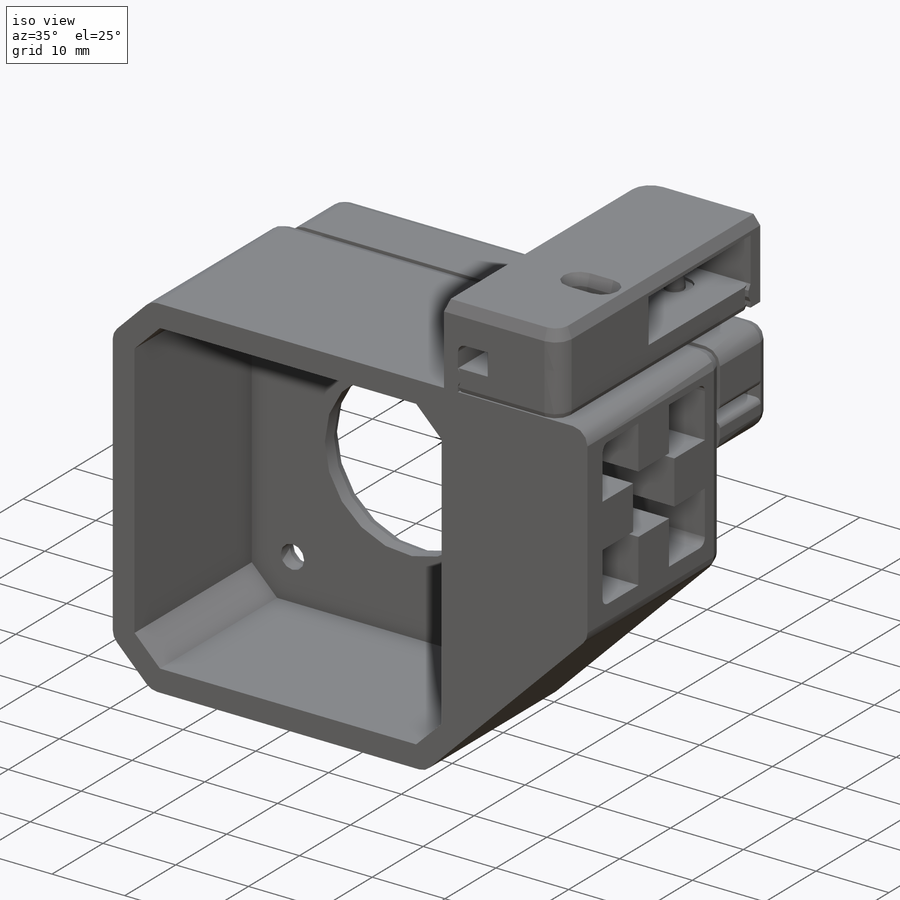
[diagram: iso view]
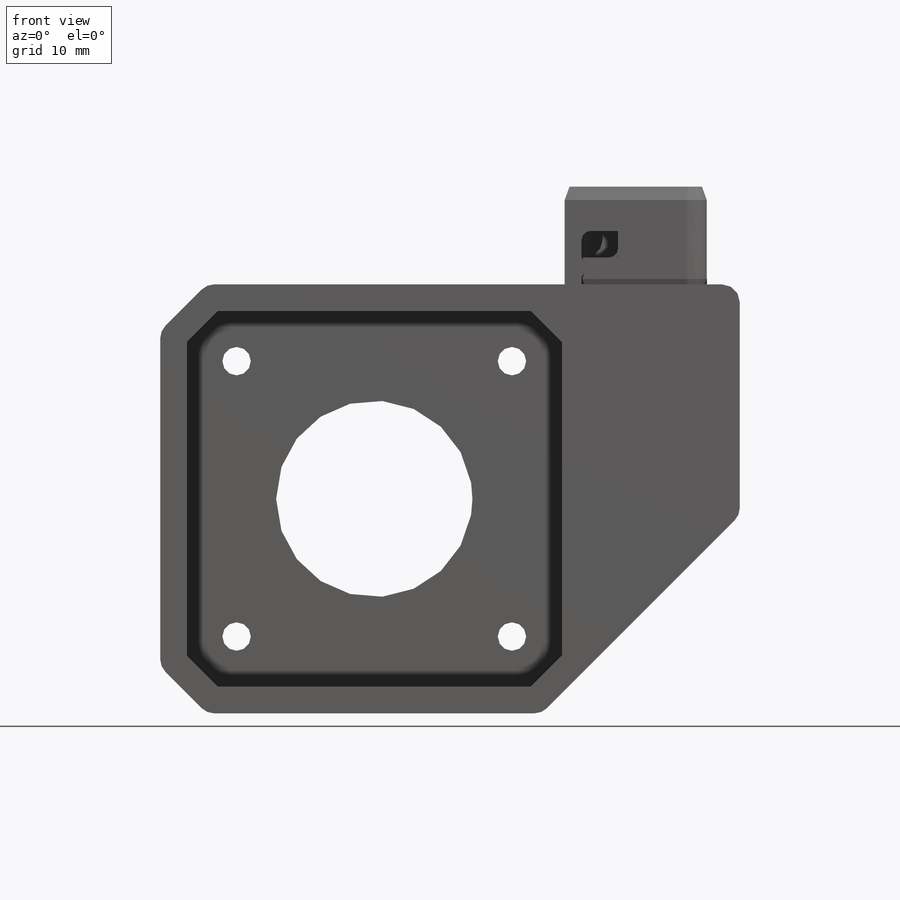
[diagram: front view]
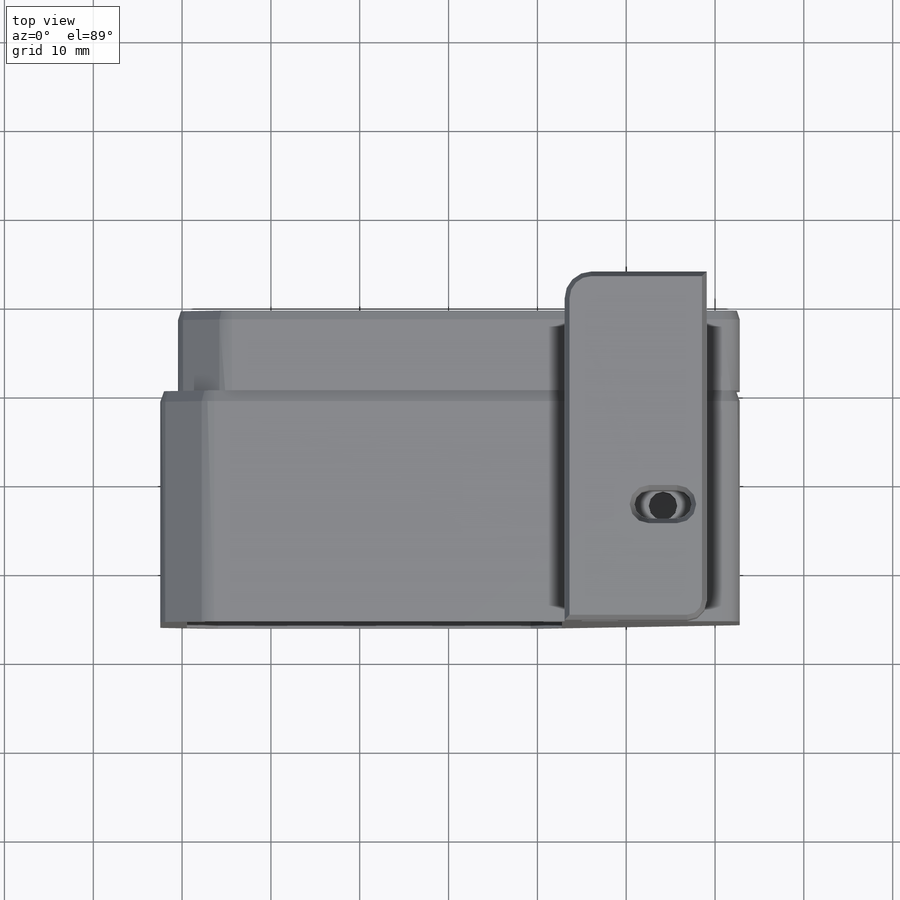
[diagram: top view]
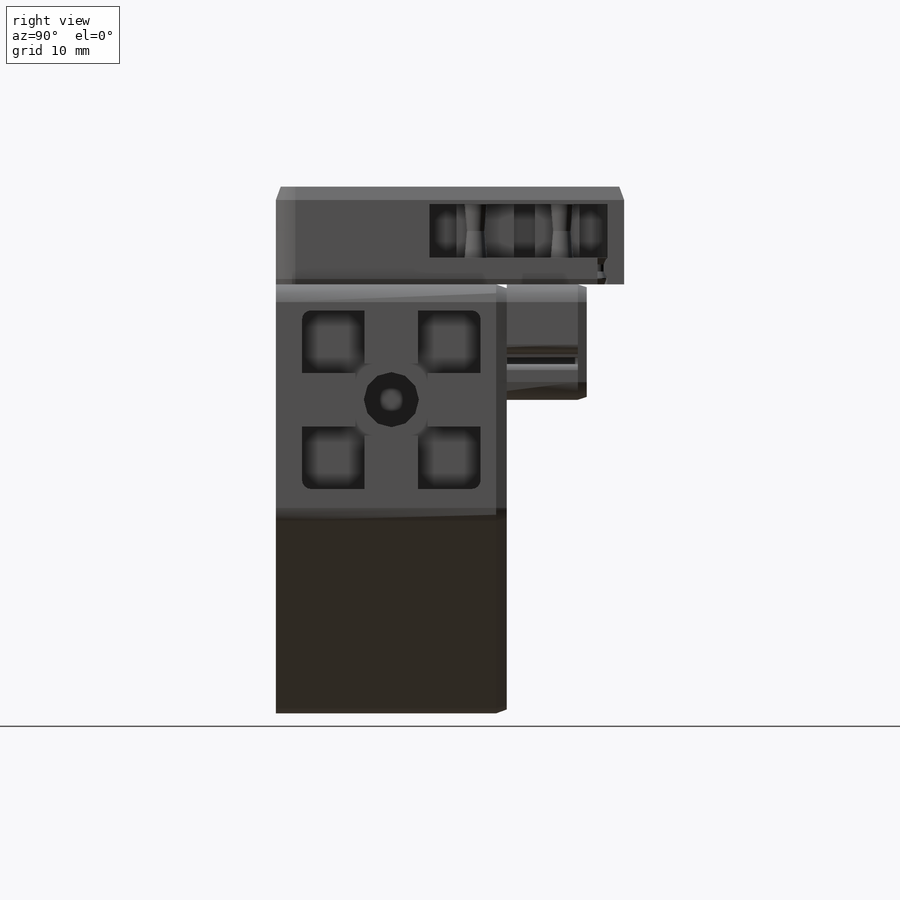
[diagram: right view]
SOLIDWORKS PART (.sldprt)
format: sldprt  version: not decoded by parser v0  size: 1,106,944 bytes
history: native  units: mm
features: sketch x26, extrude x15, cut_extrude x8, fillet x7, chamfer x5, plane x3, sweep x2, material x1 (+9 scaffold rows collapsed)
feature tree (76):
  scaffold x9  (default folders/planes/origin — collapsed)
  material  "Материал <не указан>"
  plane  "Спереди"
  plane  "Сверху"
  plane  "Справа"
  sketch  "Sketch1"  dims[D9=3.2mm D10=22.1mm D1=42.2mm D2=3.0mm D3=3.0mm D4=3.0mm D5=3.0mm D6=3.0mm D7=3.0mm D8=135.0deg]
  extrude  "Extrude1"  Depth=26mm
  extrude  "Extrude2"  [1 undecoded]
  sketch  "Sketch"  dims[D1=3.0mm]
  sketch  "Sketch2"  dims[D2=1.0mm D3=6.2mm D1=20.1mm D4=6.0mm D5=6.0mm D6=4.0]
  cut_extrude  "Extrude3"  Depth=12mm
  cut_extrude  "Extrude4"  [1 undecoded]
  sketch  "Sketch"
  sketch  "Sketch3"  dims[D1=10.2mm]
  cut_extrude  "Extrude5"  Depth=6.2mm
  fillet  "Fillet1"  Radius=2mm
  chamfer  "Chamfer1"  Distance=1mm Angle=45deg
  sketch  "Sketch4"  dims[c1.D2=~1.733559mm c1.D1=2.0mm c1.D6=2.0mm c2.D2=3.2mm c2.D3=3.2mm c2.D5=13.0mm c2.D1=0.05mm c2.D4=0.0mm]
  extrude  "Extrude6"  Depth=8mm
  extrude  "Extrude7"  [1 undecoded]
  sketch  "Sketch"  dims[D1=1.0mm]
  chamfer  "Chamfer2"  Distance=1mm Angle=18deg
  chamfer  "Chamfer3"  Distance=1.2mm Angle=20deg
  sketch  "Sketch5"  dims[c1.D5=3.2mm c1.D6=3.2mm c1.D9=1.0mm c1.D10=2.2mm c1.D1=1.2mm c1.D2=2.0mm c1.D3=5.0mm c1.D4=6.5mm c1.D7=9.0mm c1.D8=5.0mm c2.D1=4.0mm c2.D9=16.0mm c2.D5=5.0mm c2.D6=1.8mm c2.D8=3.4mm c2.D12=9.0mm c2.D13=6.9mm c2.D14=5.0mm c2.D15=9.7mm c2.D16=~6.926712mm c2.D10=1.2mm c2.D11=0.1mm]
  extrude  "Extrude8"  Depth=3mm
  extrude  "Extrude9"  [1 undecoded]
  sketch  "Sketch"  dims[D1=3.0mm D2=3.0mm D3=5.0deg D19=3.0mm]
  sketch  "Sketch6"  dims[D1=1.0mm]
  cut_extrude  "Extrude10"  Depth=0.4mm
  extrude  "Extrude11"  [1 undecoded]
  sketch  "Sketch"  dims[D1=3.0mm D2=3.0mm D19=3.0mm]
  fillet  "Fillet2"  Radius=1mm
  fillet  "Fillet3"  Radius=2mm
  extrude  "Extrude13"  [1 undecoded]
  sketch  "Sketch"  dims[D1=9.0mm]
  extrude  "Extrude14"  [1 undecoded]
  sketch  "Sketch"  dims[D1=2.0mm]
  extrude  "Extrude15"  [1 undecoded]
  sketch  "Sketch"  dims[D1=3.0mm]
  extrude  "Extrude16"  [1 undecoded]
  sketch  "Sketch"  dims[D1=3.0mm D3=5.0deg]
  cut_extrude  "Extrude17"  [1 undecoded]
  sketch  "Sketch"  dims[D1=0.4mm]
  extrude  "Extrude18"  [1 undecoded]
  sketch  "Sketch"  dims[D1=3.0mm]
  fillet  "Fillet4"  Radius=1mm
  sketch  "Sketch9"
  extrude  "Extrude19"  Depth=3mm
  sketch  "Sketch10"
  sweep  "Cut-Sweep1"
  sketch  "Sketch11"
  sweep  "Sweep1"
  sketch  "Sketch"
  fillet  "Fillet5"  Radius=1mm
  fillet  "Fillet6"  Radius=1mm
  sketch  "Sketch13"  dims[D1=2.0mm D2=2.0mm]
  extrude  "Extrude20"  Depth=10.8mm
  sketch  "Sketch14"  dims[D1=0.0mm D2=0.0mm]
  extrude  "Extrude21"  [1 undecoded]
  cut_extrude  "Extrude22"  [1 undecoded]
  sketch  "Sketch"  dims[D1=2.0mm]
  sketch  "Sketch15"  dims[D1=3.2mm D2=5.8mm]
  cut_extrude  "Extrude23"  Depth=10mm
  cut_extrude  "Extrude24"  [1 undecoded]
  sketch  "Sketch"  dims[D1=2.2mm]
  fillet  "Fillet7"  Radius=0.3mm
  chamfer  "Chamfer4"  Distance=1.5mm Angle=20deg
  chamfer  "Chamfer5"  Distance=0.6mm Angle=20deg
decode coverage: 42 of 63 modeling features carry decoded parameters
note: ~ marks probable driven/reference dimensions
note: 14 parameter values undecoded
summary: no parameter record found for 14 features
note: suppression state not decoded; provenance and decode notes live in map.json
